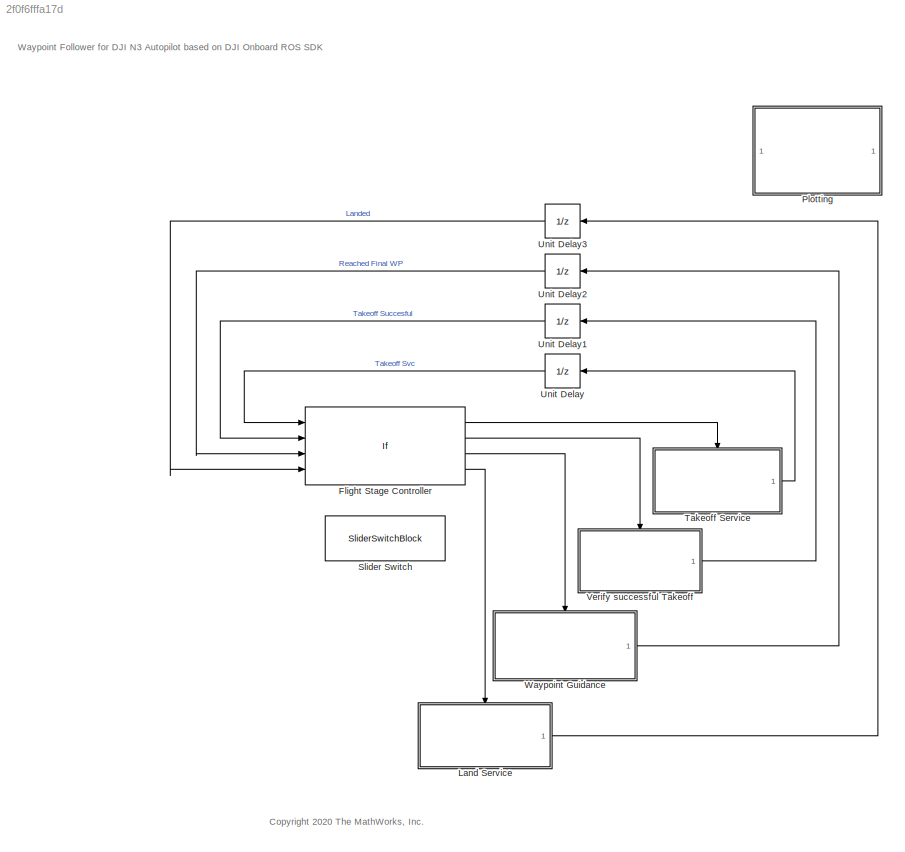
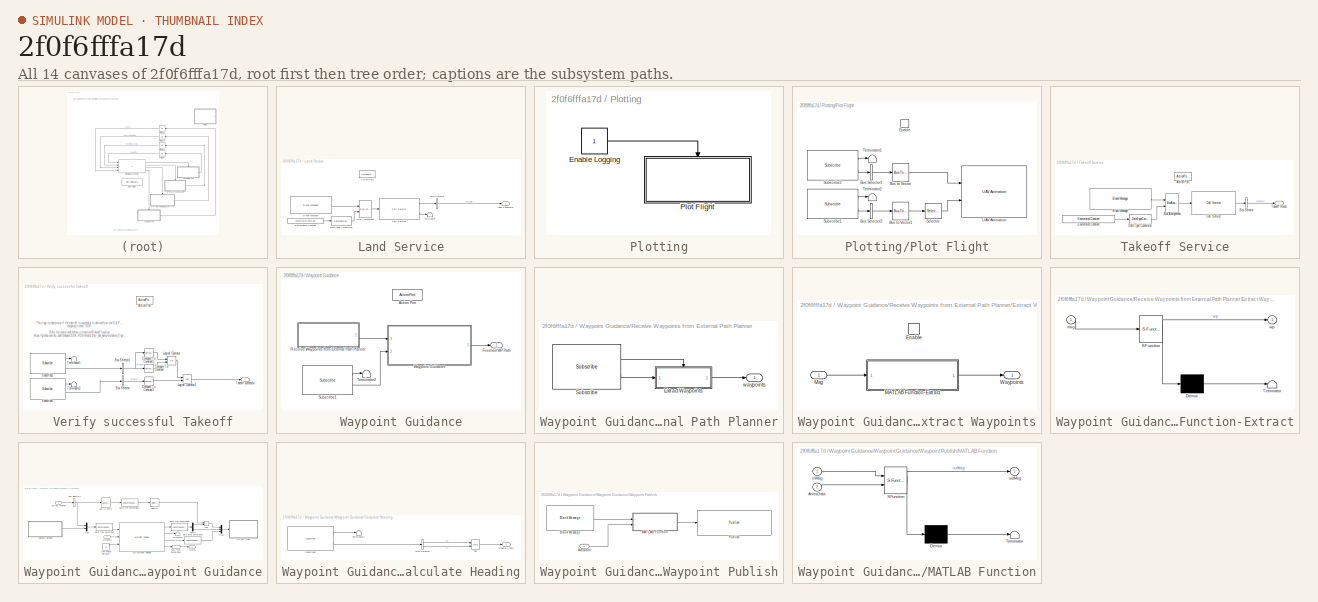
[diagram: thumbnail index - all 14 canvases of the model, root first then tree order]
MODEL slx_2f0f6fffa17d
KIND model
CONFIG AbsTol = auto
CONFIG EnableMultiTasking = on
CONFIG FixedStep = 0.001
CONFIG MaxStep = auto
CONFIG MinStep = auto
CONFIG RelTol = 1e-3
CONFIG SampleTimeConstraint = Unconstrained
CONFIG SolverName = FixedStepDiscrete
CONFIG StartTime = 0.0
CONFIG StopTime = inf
WORKSPACE source: mxarray member
WORKSPACE SL_ROS_VariableLengthArrays_MaxSizes: object (value not decoded)
BLOCK [If] Flight Stage Controller
  ElseIfExpressions = u1 == 1 & u2 == 0, u2 == 1 & u3 == 0, (u3 == 1 & u4 == 0)
  IfExpression = u1 == 0
  NumInputs = 4
  Ports = [4, 4]
  ShowElse = off
BLOCK [SubSystem] Land Service
  Ports = [0, 1, 0, 0, 0, 0, 0, 1]
  RequestExecContextInheritance = off
  TreatAsAtomicUnit = on
BLOCK [ActionPort] Land Service/Action Port
  ActionPortLabel = elseif( (u3 == 1 & u4 == 0))
BLOCK [Reference] Land Service/Blank Message  REF=robotlib/Blank Message
  Ports = [0, 1]
  SourceBlock = robotlib/Blank Message
  SourceProductBaseCode = RR
  SourceType = ROS Blank Message
BLOCK [BusAssignment] Land Service/Bus Assignment
  AssignedSignals = Task
  Ports = [2, 1]
BLOCK [BusSelector] Land Service/Bus Selector
  OutputSignals = Result
  Ports = [1, 1]
BLOCK [Reference] Land Service/Call Service  REF=robotlib/Call Service
  Ports = [1, 2]
  SourceBlock = robotlib/Call Service
  SourceProductBaseCode = RR
  SourceType = ROS Call Service
BLOCK [DataTypeConversion] Land Service/Data Type Conversion
  OutDataTypeStr = uint8
  RndMeth = Floor
  SaturateOnIntegerOverflow = off
BLOCK [Reference] Land Service/Enumerated Constant  REF=simulink/Sources/Enumerated
Constant
  Ports = [0, 1]
  SourceBlock = simulink/Sources/Enumerated\nConstant
  SourceProductBaseCode = SL
  SourceType = Enumerated Constant
BLOCK [Outport] Land Service/Land Successful
BLOCK [Terminator] Land Service/Terminator
BLOCK [SubSystem] Plotting
  Ports = []
  RequestExecContextInheritance = off
BLOCK [Constant] Plotting/Enable Logging
BLOCK [SubSystem] Plotting/Plot Flight
  Ports = [0, 0, 1]
  RequestExecContextInheritance = off
BLOCK [BusSelector] Plotting/Plot Flight/Bus Selector1
  DialogController = Simulink.DDGSource_BusSelector
  OutputAsBus = on
  OutputSignals = Point
  Ports = [1, 1]
BLOCK [BusSelector] Plotting/Plot Flight/Bus Selector2
  DialogController = Simulink.DDGSource_BusSelector
  OutputAsBus = on
  OutputSignals = Quaternion
  Ports = [1, 1]
BLOCK [BusToVector] Plotting/Plot Flight/Bus to Vector
BLOCK [BusToVector] Plotting/Plot Flight/Bus to Vector1
BLOCK [EnablePort] Plotting/Plot Flight/Enable
  Ports = []
BLOCK [Selector] Plotting/Plot Flight/Selector
  IndexOptions = Index vector (dialog)
  Indices = [4 1 2 3]
  InputPortWidth = 4
  OutputSizes = 1
  Ports = [1, 1]
BLOCK [Reference] Plotting/Plot Flight/Subscribe1  REF=robotlib/Subscribe
  Ports = [0, 2]
  SourceBlock = robotlib/Subscribe
  SourceProductBaseCode = RR
  SourceType = ROS Subscribe
BLOCK [Reference] Plotting/Plot Flight/Subscribe2  REF=robotlib/Subscribe
  Ports = [0, 2]
  SourceBlock = robotlib/Subscribe
  SourceProductBaseCode = RR
  SourceType = ROS Subscribe
BLOCK [Terminator] Plotting/Plot Flight/Terminator1
BLOCK [Terminator] Plotting/Plot Flight/Terminator2
BLOCK [Reference] Plotting/Plot Flight/UAV Animation  REF=uavutilslib/UAV Animation
  Ports = [2]
  SourceBlock = uavutilslib/UAV Animation
  SourceProductBaseCode = UV
  SourceType = uav.sluav.internal.system.UAVAnimation
BLOCK [SliderSwitchBlock] Slider Switch
BLOCK [SubSystem] Takeoff Service
  Ports = [0, 1, 0, 0, 0, 0, 0, 1]
  RequestExecContextInheritance = off
BLOCK [ActionPort] Takeoff Service/Action Port
  ActionPortLabel = if(u1 == 0)
BLOCK [Reference] Takeoff Service/Blank Message  REF=robotlib/Blank Message
  Ports = [0, 1]
  SourceBlock = robotlib/Blank Message
  SourceProductBaseCode = RR
  SourceType = ROS Blank Message
BLOCK [BusAssignment] Takeoff Service/Bus Assignment
  AssignedSignals = Task
  Ports = [2, 1]
BLOCK [BusSelector] Takeoff Service/Bus Selector
  OutputSignals = Result
  Ports = [1, 1]
BLOCK [Reference] Takeoff Service/Call Service  REF=robotlib/Call Service
  Ports = [1, 1]
  SourceBlock = robotlib/Call Service
  SourceProductBaseCode = RR
  SourceType = ROS Call Service
BLOCK [DataTypeConversion] Takeoff Service/Data Type Conversion
  OutDataTypeStr = uint8
  RndMeth = Floor
  SaturateOnIntegerOverflow = off
BLOCK [Reference] Takeoff Service/Enumerated Constant  REF=simulink/Sources/Enumerated
Constant
  Ports = [0, 1]
  SourceBlock = simulink/Sources/Enumerated\nConstant
  SourceProductBaseCode = SL
  SourceType = Enumerated Constant
BLOCK [Outport] Takeoff Service/Takeoff Result
BLOCK [UnitDelay] Unit Delay
  HasFrameUpgradeWarning = on
  SampleTime = -1
BLOCK [UnitDelay] Unit Delay1
  HasFrameUpgradeWarning = on
  SampleTime = -1
BLOCK [UnitDelay] Unit Delay2
  HasFrameUpgradeWarning = on
  SampleTime = -1
BLOCK [UnitDelay] Unit Delay3
  HasFrameUpgradeWarning = on
  SampleTime = -1
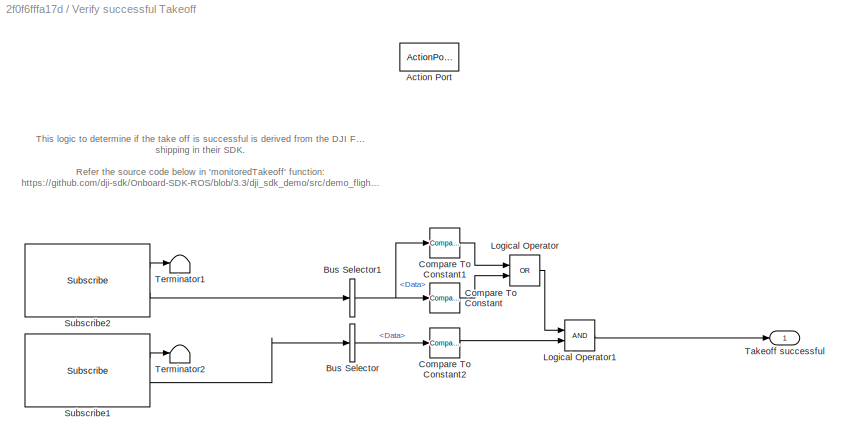
BLOCK [SubSystem] Verify successful Takeoff
  Ports = [0, 1, 0, 0, 0, 0, 0, 1]
  RequestExecContextInheritance = off
BLOCK [ActionPort] Verify successful Takeoff/Action Port
  ActionPortLabel = elseif(u1 == 1 & u2 == 0)
BLOCK [BusSelector] Verify successful Takeoff/Bus Selector
  OutputSignals = Data
  Ports = [1, 1]
BLOCK [BusSelector] Verify successful Takeoff/Bus Selector1
  OutputSignals = Data
  Ports = [1, 1]
BLOCK [Reference] Verify successful Takeoff/Compare To Constant  REF=simulink/Logic and Bit
Operations/Compare
To Constant
  Ports = [1, 1]
  SourceBlock = simulink/Logic and Bit\nOperations/Compare\nTo Constant
  SourceProductBaseCode = SL
  SourceType = Compare To Constant
BLOCK [Reference] Verify successful Takeoff/Compare To Constant1  REF=simulink/Logic and Bit
Operations/Compare
To Constant
  Ports = [1, 1]
  SourceBlock = simulink/Logic and Bit\nOperations/Compare\nTo Constant
  SourceProductBaseCode = SL
  SourceType = Compare To Constant
BLOCK [Reference] Verify successful Takeoff/Compare To Constant2  REF=simulink/Logic and Bit
Operations/Compare
To Constant
  Ports = [1, 1]
  SourceBlock = simulink/Logic and Bit\nOperations/Compare\nTo Constant
  SourceProductBaseCode = SL
  SourceType = Compare To Constant
BLOCK [Logic] Verify successful Takeoff/Logical Operator
  AllPortsSameDT = off
  Operator = OR
  OutDataTypeStr = boolean
  Ports = [2, 1]
BLOCK [Logic] Verify successful Takeoff/Logical Operator1
  AllPortsSameDT = off
  OutDataTypeStr = boolean
  Ports = [2, 1]
BLOCK [Reference] Verify successful Takeoff/Subscribe1  REF=robotlib/Subscribe
  Ports = [0, 2]
  SourceBlock = robotlib/Subscribe
  SourceProductBaseCode = RR
  SourceType = ROS Subscribe
BLOCK [Reference] Verify successful Takeoff/Subscribe2  REF=robotlib/Subscribe
  Ports = [0, 2]
  SourceBlock = robotlib/Subscribe
  SourceProductBaseCode = RR
  SourceType = ROS Subscribe
BLOCK [Outport] Verify successful Takeoff/Takeoff successful
BLOCK [Terminator] Verify successful Takeoff/Terminator1
BLOCK [Terminator] Verify successful Takeoff/Terminator2
BLOCK [SubSystem] Waypoint Guidance
  Ports = [0, 1, 0, 0, 0, 0, 0, 1]
  RequestExecContextInheritance = off
BLOCK [ActionPort] Waypoint Guidance/Action Port
  ActionPortLabel = elseif( u2 == 1 & u3 == 0)
  PropagateVarSize = During execution
BLOCK [Outport] Waypoint Guidance/Finished WP Path
BLOCK [SubSystem] Waypoint Guidance/Receive Waypoints from External Path Planner
  Ports = [0, 1]
  RequestExecContextInheritance = off
BLOCK [SubSystem] Waypoint Guidance/Receive Waypoints from External Path Planner/Extract Waypoints
  Ports = [1, 1, 1]
  RequestExecContextInheritance = off
BLOCK [EnablePort] Waypoint Guidance/Receive Waypoints from External Path Planner/Extract Waypoints/Enable
  Ports = []
  PropagateVarSize = During execution
BLOCK [SubSystem] Waypoint Guidance/Receive Waypoints from External Path Planner/Extract Waypoints/MATLAB Function-Extract
  ErrorFcn = Stateflow.Translate.translate
  PermitHierarchicalResolution = ExplicitOnly
  Ports = [1, 1]
  RequestExecContextInheritance = off
  SFBlockType = MATLAB Function
  TreatAsAtomicUnit = on
BLOCK [Demux] Waypoint Guidance/Receive Waypoints from External Path Planner/Extract Waypoints/MATLAB Function-Extract/ Demux 
  Outputs = 1
  Ports = [1, 1]
BLOCK [S-Function] Waypoint Guidance/Receive Waypoints from External Path Planner/Extract Waypoints/MATLAB Function-Extract/ SFunction 
  EnableBusSupport = off
  FunctionName = sf_sfun
  PortCounts = [1 2]
  Ports = [1, 2]
  SFcnIsStateOwnerBlock = off
  SFunctionDeploymentMode = off
  Tag = Stateflow S-Function 5
BLOCK [Terminator] Waypoint Guidance/Receive Waypoints from External Path Planner/Extract Waypoints/MATLAB Function-Extract/ Terminator 
BLOCK [Inport] Waypoint Guidance/Receive Waypoints from External Path Planner/Extract Waypoints/MATLAB Function-Extract/msg
BLOCK [Outport] Waypoint Guidance/Receive Waypoints from External Path Planner/Extract Waypoints/MATLAB Function-Extract/wp
BLOCK [Inport] Waypoint Guidance/Receive Waypoints from External Path Planner/Extract Waypoints/Msg
BLOCK [Outport] Waypoint Guidance/Receive Waypoints from External Path Planner/Extract Waypoints/Waypoints
BLOCK [Reference] Waypoint Guidance/Receive Waypoints from External Path Planner/Subscribe  REF=robotlib/Subscribe
  Ports = [0, 2]
  SourceBlock = robotlib/Subscribe
  SourceProductBaseCode = RR
  SourceType = ROS Subscribe
BLOCK [Outport] Waypoint Guidance/Receive Waypoints from External Path Planner/waypoints
BLOCK [Reference] Waypoint Guidance/Subscribe1  REF=robotlib/Subscribe
  Ports = [0, 2]
  SourceBlock = robotlib/Subscribe
  SourceProductBaseCode = RR
  SourceType = ROS Subscribe
BLOCK [Terminator] Waypoint Guidance/Terminator2
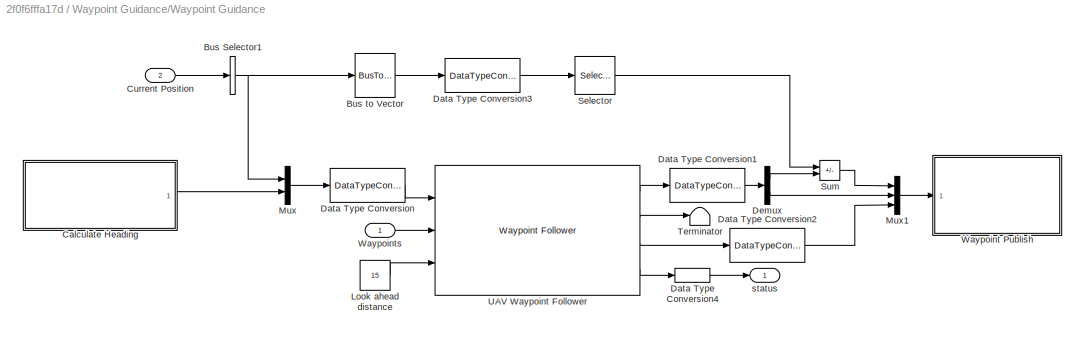
BLOCK [SubSystem] Waypoint Guidance/Waypoint Guidance
  Ports = [2, 1]
  RequestExecContextInheritance = off
BLOCK [BusSelector] Waypoint Guidance/Waypoint Guidance/Bus Selector1
  DialogController = Simulink.DDGSource_BusSelector
  OutputAsBus = on
  OutputSignals = Point
  Ports = [1, 1]
BLOCK [BusToVector] Waypoint Guidance/Waypoint Guidance/Bus to Vector
BLOCK [SubSystem] Waypoint Guidance/Waypoint Guidance/Calculate Heading
  Ports = [0, 1]
  RequestExecContextInheritance = off
BLOCK [BusSelector] Waypoint Guidance/Waypoint Guidance/Calculate Heading/Bus Selector
  OutputSignals = Vector_.X,Vector_.Y
  Ports = [1, 2]
BLOCK [Outport] Waypoint Guidance/Waypoint Guidance/Calculate Heading/Heading Angle
BLOCK [Reference] Waypoint Guidance/Waypoint Guidance/Calculate Heading/Subscribe2  REF=robotlib/Subscribe
  Ports = [0, 2]
  SourceBlock = robotlib/Subscribe
  SourceProductBaseCode = RR
  SourceType = ROS Subscribe
BLOCK [Trigonometry] Waypoint Guidance/Waypoint Guidance/Calculate Heading/Tan
  Operator = atan2
  Ports = [2, 1]
BLOCK [Terminator] Waypoint Guidance/Waypoint Guidance/Calculate Heading/Terminator1
BLOCK [Inport] Waypoint Guidance/Waypoint Guidance/Current Position
  Port = 2
BLOCK [DataTypeConversion] Waypoint Guidance/Waypoint Guidance/Data Type Conversion
  OutDataTypeStr = double
  RndMeth = Floor
  SaturateOnIntegerOverflow = off
BLOCK [DataTypeConversion] Waypoint Guidance/Waypoint Guidance/Data Type Conversion1
  OutDataTypeStr = single
  RndMeth = Floor
  SaturateOnIntegerOverflow = off
BLOCK [DataTypeConversion] Waypoint Guidance/Waypoint Guidance/Data Type Conversion2
  OutDataTypeStr = single
  RndMeth = Floor
  SaturateOnIntegerOverflow = off
BLOCK [DataTypeConversion] Waypoint Guidance/Waypoint Guidance/Data Type Conversion3
  OutDataTypeStr = single
  RndMeth = Floor
  SaturateOnIntegerOverflow = off
BLOCK [DataTypeConversion] Waypoint Guidance/Waypoint Guidance/Data Type Conversion4
  OutDataTypeStr = boolean
  RndMeth = Floor
  SaturateOnIntegerOverflow = off
BLOCK [Demux] Waypoint Guidance/Waypoint Guidance/Demux
  Outputs = [2 1]
  Ports = [1, 2]
BLOCK [Constant] Waypoint Guidance/Waypoint Guidance/Look ahead distance
  SampleTime = -1
  Value = 15
BLOCK [Mux] Waypoint Guidance/Waypoint Guidance/Mux
  DisplayOption = bar
  Inputs = 2
  Ports = [2, 1]
BLOCK [Mux] Waypoint Guidance/Waypoint Guidance/Mux1
  DisplayOption = bar
  Inputs = 3
  Ports = [3, 1]
BLOCK [Selector] Waypoint Guidance/Waypoint Guidance/Selector
  IndexOptions = Index vector (dialog)
  Indices = [1 2]
  InputPortWidth = 3
  OutputSizes = 1
  Ports = [1, 1]
BLOCK [Sum] Waypoint Guidance/Waypoint Guidance/Sum
  IconShape = rectangular
  Inputs = -+
  Ports = [2, 1]
BLOCK [Terminator] Waypoint Guidance/Waypoint Guidance/Terminator
BLOCK [Reference] Waypoint Guidance/Waypoint Guidance/UAV Waypoint Follower  REF=uavalgslib/Waypoint Follower
  Ports = [3, 4]
  SourceBlock = uavalgslib/Waypoint Follower
  SourceProductBaseCode = UV
  SourceType = uav.sluav.internal.system.WaypointFollower
BLOCK [SubSystem] Waypoint Guidance/Waypoint Guidance/Waypoint Publish
  Ports = [1]
  RequestExecContextInheritance = off
  TreatAsAtomicUnit = on
BLOCK [Inport] Waypoint Guidance/Waypoint Guidance/Waypoint Publish/AxesData
BLOCK [Reference] Waypoint Guidance/Waypoint Guidance/Waypoint Publish/Blank Message  REF=robotlib/Blank Message
  Ports = [0, 1]
  SourceBlock = robotlib/Blank Message
  SourceProductBaseCode = RR
  SourceType = ROS Blank Message
BLOCK [SubSystem] Waypoint Guidance/Waypoint Guidance/Waypoint Publish/MATLAB Function
  ErrorFcn = Stateflow.Translate.translate
  PermitHierarchicalResolution = ExplicitOnly
  Ports = [2, 1]
  RequestExecContextInheritance = off
  SFBlockType = MATLAB Function
  TreatAsAtomicUnit = on
BLOCK [Demux] Waypoint Guidance/Waypoint Guidance/Waypoint Publish/MATLAB Function/ Demux 
  Outputs = 1
  Ports = [1, 1]
BLOCK [S-Function] Waypoint Guidance/Waypoint Guidance/Waypoint Publish/MATLAB Function/ SFunction 
  EnableBusSupport = off
  FunctionName = sf_sfun
  PortCounts = [2 2]
  Ports = [2, 2]
  SFcnIsStateOwnerBlock = off
  SFunctionDeploymentMode = off
  Tag = Stateflow S-Function 7
BLOCK [Terminator] Waypoint Guidance/Waypoint Guidance/Waypoint Publish/MATLAB Function/ Terminator 
BLOCK [Inport] Waypoint Guidance/Waypoint Guidance/Waypoint Publish/MATLAB Function/AxesData
  Port = 2
BLOCK [Inport] Waypoint Guidance/Waypoint Guidance/Waypoint Publish/MATLAB Function/inMsg
BLOCK [Outport] Waypoint Guidance/Waypoint Guidance/Waypoint Publish/MATLAB Function/outMsg
BLOCK [Reference] Waypoint Guidance/Waypoint Guidance/Waypoint Publish/Publish  REF=robotlib/Publish
  Ports = [1]
  SourceBlock = robotlib/Publish
  SourceProductBaseCode = RR
  SourceType = ROS Publish
BLOCK [Inport] Waypoint Guidance/Waypoint Guidance/Waypoints
BLOCK [Outport] Waypoint Guidance/Waypoint Guidance/status 
ANNOTATION (root): <copyright redacted>
ANNOTATION (root): Waypoint Follower for DJI N3 Autopilot based on DJI Onboard ROS SDK
ANNOTATION Verify successful Takeoff: This logic to determine if the take off is successful is derived from the DJI Flight Control demo example shipping in their SDK. Refer the source code below in 'monitoredTakeoff' function: https://github.com/dji-sdk/Onboard-SDK-ROS/blob/3.3/dji_sdk_demo/src/demo_flight_control.cpp
LINE Flight Stage Controller:1 -> Takeoff Service:ifaction
LINE Flight Stage Controller:2 -> Verify successful Takeoff:ifaction
LINE Flight Stage Controller:3 -> Waypoint Guidance:ifaction
LINE Flight Stage Controller:4 -> Land Service:ifaction
LINE Land Service/Blank Message:1 -> Land Service/Bus Assignment:1
LINE Land Service/Bus Assignment:1 -> Land Service/Call Service:1
LINE Land Service/Bus Selector:1 -> Land Service/Land Successful:1
LINE Land Service/Call Service:1 -> Land Service/Bus Selector:1
LINE Land Service/Call Service:2 -> Land Service/Terminator:1
LINE Land Service/Data Type Conversion:1 -> Land Service/Bus Assignment:2
LINE Land Service/Enumerated Constant:1 -> Land Service/Data Type Conversion:1
LINE Land Service:1 -> Unit Delay3:1
LINE Plotting/Enable Logging:1 -> Plotting/Plot Flight:enable
LINE Plotting/Plot Flight/Bus Selector1:1 -> Plotting/Plot Flight/Bus to Vector:1
LINE Plotting/Plot Flight/Bus Selector2:1 -> Plotting/Plot Flight/Bus to Vector1:1
LINE Plotting/Plot Flight/Bus to Vector1:1 -> Plotting/Plot Flight/Selector:1
LINE Plotting/Plot Flight/Bus to Vector:1 -> Plotting/Plot Flight/UAV Animation:1
LINE Plotting/Plot Flight/Selector:1 -> Plotting/Plot Flight/UAV Animation:2
LINE Plotting/Plot Flight/Subscribe1:1 -> Plotting/Plot Flight/Terminator2:1
LINE Plotting/Plot Flight/Subscribe1:2 -> Plotting/Plot Flight/Bus Selector2:1
LINE Plotting/Plot Flight/Subscribe2:1 -> Plotting/Plot Flight/Terminator1:1
LINE Plotting/Plot Flight/Subscribe2:2 -> Plotting/Plot Flight/Bus Selector1:1
LINE Takeoff Service/Blank Message:1 -> Takeoff Service/Bus Assignment:1
LINE Takeoff Service/Bus Assignment:1 -> Takeoff Service/Call Service:1
LINE Takeoff Service/Bus Selector:1 -> Takeoff Service/Takeoff Result:1
LINE Takeoff Service/Call Service:1 -> Takeoff Service/Bus Selector:1
LINE Takeoff Service/Data Type Conversion:1 -> Takeoff Service/Bus Assignment:2
LINE Takeoff Service/Enumerated Constant:1 -> Takeoff Service/Data Type Conversion:1
LINE Takeoff Service:1 -> Unit Delay:1
LINE Unit Delay1:1 -> Flight Stage Controller:2
LINE Unit Delay2:1 -> Flight Stage Controller:3
LINE Unit Delay3:1 -> Flight Stage Controller:4
LINE Unit Delay:1 -> Flight Stage Controller:1
NET Verify successful Takeoff/Bus Selector1:1 -> Verify successful Takeoff/Compare To Constant1:1, Verify successful Takeoff/Compare To Constant:1
LINE Verify successful Takeoff/Bus Selector:1 -> Verify successful Takeoff/Compare To Constant2:1
LINE Verify successful Takeoff/Compare To Constant1:1 -> Verify successful Takeoff/Logical Operator:1
LINE Verify successful Takeoff/Compare To Constant2:1 -> Verify successful Takeoff/Logical Operator1:2
LINE Verify successful Takeoff/Compare To Constant:1 -> Verify successful Takeoff/Logical Operator:2
LINE Verify successful Takeoff/Logical Operator1:1 -> Verify successful Takeoff/Takeoff successful:1
LINE Verify successful Takeoff/Logical Operator:1 -> Verify successful Takeoff/Logical Operator1:1
LINE Verify successful Takeoff/Subscribe1:1 -> Verify successful Takeoff/Terminator2:1
LINE Verify successful Takeoff/Subscribe1:2 -> Verify successful Takeoff/Bus Selector:1
LINE Verify successful Takeoff/Subscribe2:1 -> Verify successful Takeoff/Terminator1:1
LINE Verify successful Takeoff/Subscribe2:2 -> Verify successful Takeoff/Bus Selector1:1
LINE Verify successful Takeoff:1 -> Unit Delay1:1
LINE Waypoint Guidance/Receive Waypoints from External Path Planner/Extract Waypoints/MATLAB Function-Extract:1 -> Waypoint Guidance/Receive Waypoints from External Path Planner/Extract Waypoints/Waypoints:1
LINE Waypoint Guidance/Receive Waypoints from External Path Planner/Extract Waypoints/Msg:1 -> Waypoint Guidance/Receive Waypoints from External Path Planner/Extract Waypoints/MATLAB Function-Extract:1
LINE Waypoint Guidance/Receive Waypoints from External Path Planner/Extract Waypoints:1 -> Waypoint Guidance/Receive Waypoints from External Path Planner/waypoints:1
LINE Waypoint Guidance/Receive Waypoints from External Path Planner/Subscribe:1 -> Waypoint Guidance/Receive Waypoints from External Path Planner/Extract Waypoints:enable
LINE Waypoint Guidance/Receive Waypoints from External Path Planner/Subscribe:2 -> Waypoint Guidance/Receive Waypoints from External Path Planner/Extract Waypoints:1
LINE Waypoint Guidance/Receive Waypoints from External Path Planner:1 -> Waypoint Guidance/Waypoint Guidance:1
LINE Waypoint Guidance/Subscribe1:1 -> Waypoint Guidance/Terminator2:1
LINE Waypoint Guidance/Subscribe1:2 -> Waypoint Guidance/Waypoint Guidance:2
NET Waypoint Guidance/Waypoint Guidance/Bus Selector1:1 -> Waypoint Guidance/Waypoint Guidance/Bus to Vector:1, Waypoint Guidance/Waypoint Guidance/Mux:1
LINE Waypoint Guidance/Waypoint Guidance/Bus to Vector:1 -> Waypoint Guidance/Waypoint Guidance/Data Type Conversion3:1
LINE Waypoint Guidance/Waypoint Guidance/Calculate Heading/Bus Selector:1 -> Waypoint Guidance/Waypoint Guidance/Calculate Heading/Tan:1
LINE Waypoint Guidance/Waypoint Guidance/Calculate Heading/Bus Selector:2 -> Waypoint Guidance/Waypoint Guidance/Calculate Heading/Tan:2
LINE Waypoint Guidance/Waypoint Guidance/Calculate Heading/Subscribe2:1 -> Waypoint Guidance/Waypoint Guidance/Calculate Heading/Terminator1:1
LINE Waypoint Guidance/Waypoint Guidance/Calculate Heading/Subscribe2:2 -> Waypoint Guidance/Waypoint Guidance/Calculate Heading/Bus Selector:1
LINE Waypoint Guidance/Waypoint Guidance/Calculate Heading/Tan:1 -> Waypoint Guidance/Waypoint Guidance/Calculate Heading/Heading Angle:1
LINE Waypoint Guidance/Waypoint Guidance/Calculate Heading:1 -> Waypoint Guidance/Waypoint Guidance/Mux:2
LINE Waypoint Guidance/Waypoint Guidance/Current Position:1 -> Waypoint Guidance/Waypoint Guidance/Bus Selector1:1
LINE Waypoint Guidance/Waypoint Guidance/Data Type Conversion1:1 -> Waypoint Guidance/Waypoint Guidance/Demux:1
LINE Waypoint Guidance/Waypoint Guidance/Data Type Conversion2:1 -> Waypoint Guidance/Waypoint Guidance/Mux1:3
LINE Waypoint Guidance/Waypoint Guidance/Data Type Conversion3:1 -> Waypoint Guidance/Waypoint Guidance/Selector:1
LINE Waypoint Guidance/Waypoint Guidance/Data Type Conversion4:1 -> Waypoint Guidance/Waypoint Guidance/status :1
LINE Waypoint Guidance/Waypoint Guidance/Data Type Conversion:1 -> Waypoint Guidance/Waypoint Guidance/UAV Waypoint Follower:1
LINE Waypoint Guidance/Waypoint Guidance/Demux:1 -> Waypoint Guidance/Waypoint Guidance/Sum:2
LINE Waypoint Guidance/Waypoint Guidance/Demux:2 -> Waypoint Guidance/Waypoint Guidance/Mux1:2
LINE Waypoint Guidance/Waypoint Guidance/Look ahead distance:1 -> Waypoint Guidance/Waypoint Guidance/UAV Waypoint Follower:3
LINE Waypoint Guidance/Waypoint Guidance/Mux1:1 -> Waypoint Guidance/Waypoint Guidance/Waypoint Publish:1
LINE Waypoint Guidance/Waypoint Guidance/Mux:1 -> Waypoint Guidance/Waypoint Guidance/Data Type Conversion:1
LINE Waypoint Guidance/Waypoint Guidance/Selector:1 -> Waypoint Guidance/Waypoint Guidance/Sum:1
LINE Waypoint Guidance/Waypoint Guidance/Sum:1 -> Waypoint Guidance/Waypoint Guidance/Mux1:1
LINE Waypoint Guidance/Waypoint Guidance/UAV Waypoint Follower:1 -> Waypoint Guidance/Waypoint Guidance/Data Type Conversion1:1
LINE Waypoint Guidance/Waypoint Guidance/UAV Waypoint Follower:2 -> Waypoint Guidance/Waypoint Guidance/Terminator:1
LINE Waypoint Guidance/Waypoint Guidance/UAV Waypoint Follower:3 -> Waypoint Guidance/Waypoint Guidance/Data Type Conversion2:1
LINE Waypoint Guidance/Waypoint Guidance/UAV Waypoint Follower:4 -> Waypoint Guidance/Waypoint Guidance/Data Type Conversion4:1
LINE Waypoint Guidance/Waypoint Guidance/Waypoint Publish/AxesData:1 -> Waypoint Guidance/Waypoint Guidance/Waypoint Publish/MATLAB Function:2
LINE Waypoint Guidance/Waypoint Guidance/Waypoint Publish/Blank Message:1 -> Waypoint Guidance/Waypoint Guidance/Waypoint Publish/MATLAB Function:1
LINE Waypoint Guidance/Waypoint Guidance/Waypoint Publish/MATLAB Function:1 -> Waypoint Guidance/Waypoint Guidance/Waypoint Publish/Publish:1
LINE Waypoint Guidance/Waypoint Guidance/Waypoints:1 -> Waypoint Guidance/Waypoint Guidance/UAV Waypoint Follower:2
LINE Waypoint Guidance/Waypoint Guidance:1 -> Waypoint Guidance/Finished WP Path:1
LINE Waypoint Guidance:1 -> Unit Delay2:1
note: NET lines group one-source signal fan-out (src -> all destinations, sorted); 1:1 wires keep LINE
CHART Waypoint Guidance/Receive Waypoints from 
External Path Planner/Extract Waypoints/MATLAB Function-Extract states=1 transitions=1
  STATE_LABEL 'eML_blk_kernel()'
  STATE_LABEL 'SCRIPT:\nfunction wp  = extractNestedArrayMessages(msg)\n%#codegen\n\n% geometry_msgs/PoseArray consists of\n%          Header: [1x1 Header]\n%           Poses: [nx1 Pose]\n\n% Poses is an array of "geometry_msgs/Pose", which consists of\n%        Position: [1x1 Point]\n%     Orientation: [1x1 Quaternion]\n\n% Position is "geometry_msgs/Point", which consists of\n%               X: 0\n%               Y: 0\n%    ...<+620ch>'
CHART Waypoint Guidance/Waypoint Guidance/Waypoint Publish/MATLAB Function states=1 transitions=1
  STATE_LABEL 'eML_blk_kernel()'
  STATE_LABEL 'SCRIPT:\nfunction outMsg = fcn(inMsg, AxesData)\n\ninMsg.Axes = AxesData;\ninMsg.Axes_SL_Info.CurrentLength = uint32(numel(AxesData));\ninMsg.Axes_SL_Info.ReceivedLength = uint32(numel(AxesData));\n\noutMsg = inMsg;\n'
CHART  states=0 transitions=0
CHART  states=0 transitions=0
